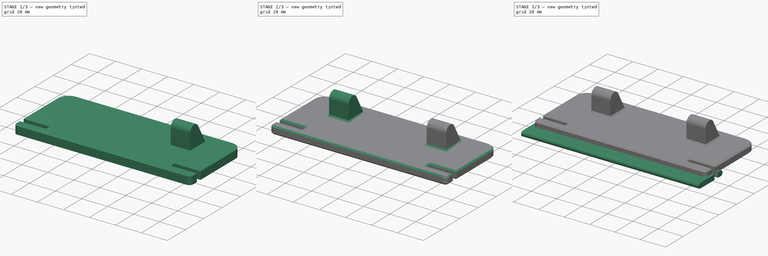
[diagram: build sequence overview — one tinted view per stage of 3, left to right]
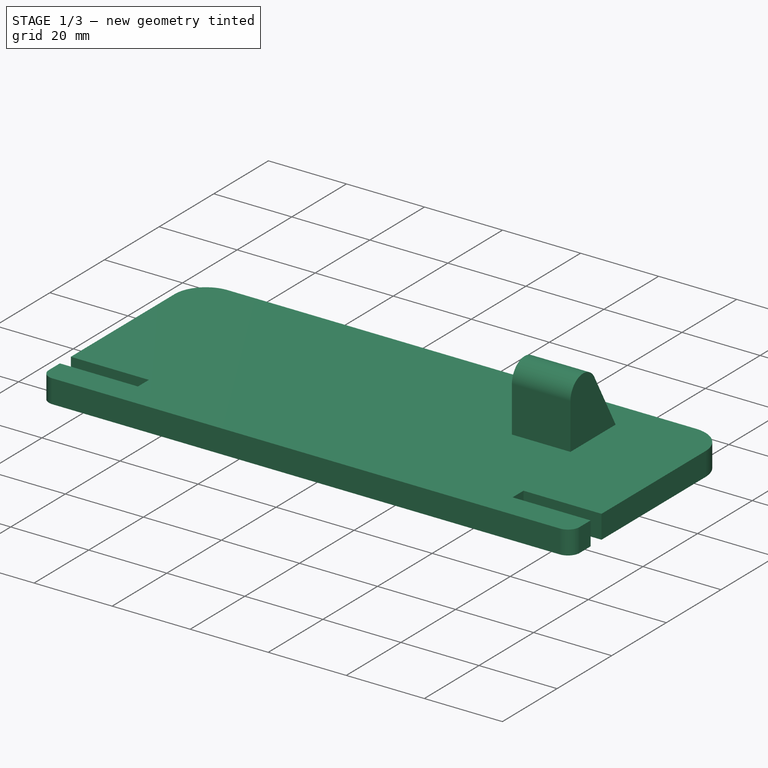
[diagram: stage 1 of 3 — iso view after this stage's code; geometry added in this stage tinted green]
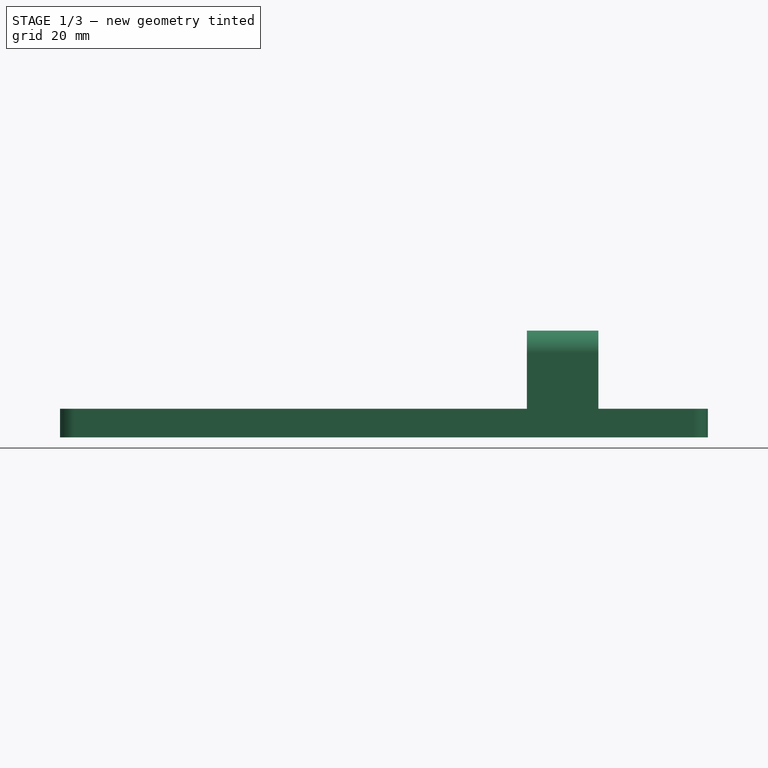
[diagram: stage 1 of 3 — front view after this stage's code; geometry added in this stage tinted green]
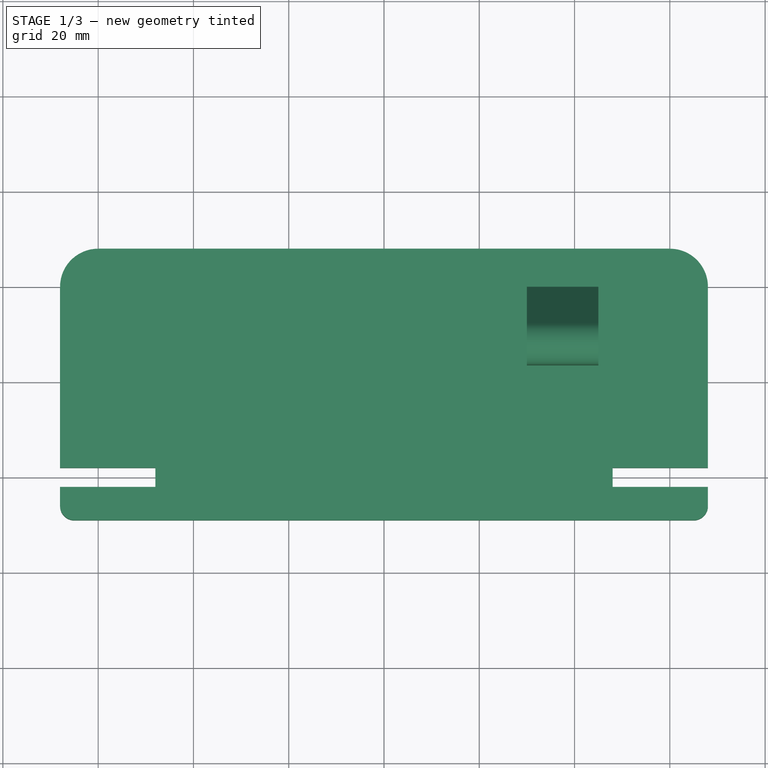
[diagram: stage 1 of 3 — top view after this stage's code; geometry added in this stage tinted green]
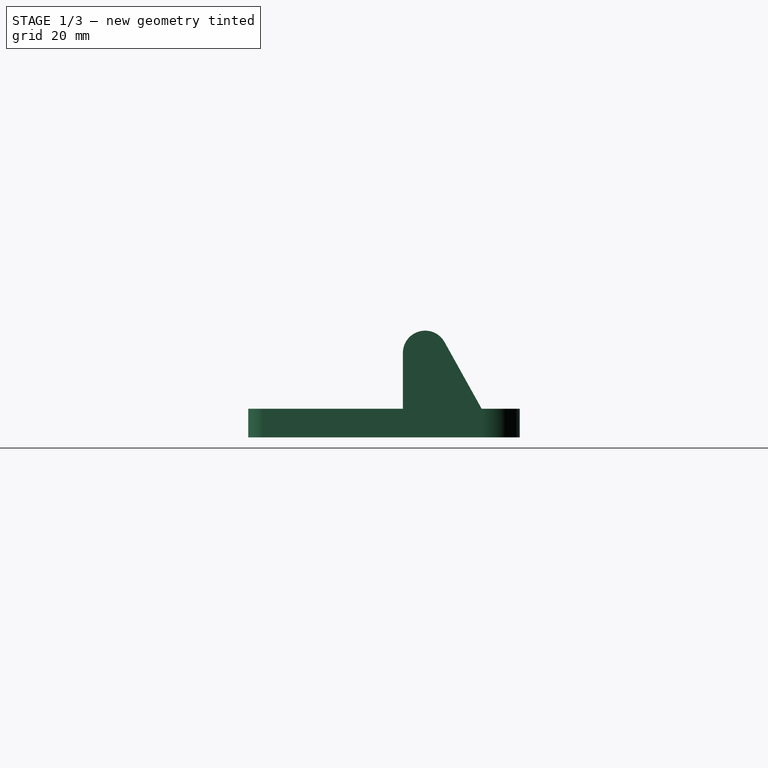
[diagram: stage 1 of 3 — right view after this stage's code; geometry added in this stage tinted green]
FCSTD DOCUMENT  (FreeCAD 0.22R36117 (Git))
Label: feeding finger
License: All rights reserved
LicenseURL: http://en.wikipedia.org/wiki/All_rights_reserved
objects: Sketcher::SketchObject×4, PartDesign::Pad×3, PartDesign::Body×2, PartDesign::Pocket×1, PartDesign::Mirrored×1, PartDesign::Chamfer×1
note: 17 computed .brp shape members not serialized (recipe doc carries the construction recipe); baked Part::Feature solids carry a one-line shape summary decoded from their .brp

FEATURE [PartDesign::Body] Body
  Group = -> [Sketch,Pad,Sketch001,Pocket]
  Origin = -> Origin
  Tip = -> Pocket
FEATURE [Sketcher::SketchObject] Sketch002
  FullyConstrained = true
  MapMode = 5
  Support = -> [XY_Plane001]
  sketch-geometry (19):
    g0: LineSegment StartX=-60 StartY=48 StartZ=0 EndX=60 EndY=48 EndZ=0
    g1: LineSegment StartX=68 StartY=40 StartZ=0 EndX=68 EndY=2 EndZ=0
    g2: LineSegment StartX=68 StartY=-2 StartZ=0 EndX=48 EndY=-2 EndZ=0
    g3: LineSegment StartX=48 StartY=-2 StartZ=0 EndX=48 EndY=2 EndZ=0
    g4: LineSegment StartX=48 StartY=2 StartZ=0 EndX=68 EndY=2 EndZ=0
    g5: LineSegment StartX=68 StartY=-2 StartZ=0 EndX=68 EndY=-6 EndZ=0
    g6: LineSegment StartX=65 StartY=-9 StartZ=0 EndX=-65 EndY=-9 EndZ=0
    g7: LineSegment StartX=-48 StartY=-2 StartZ=0 EndX=-48 EndY=2 EndZ=0
    g8: LineSegment StartX=-48 StartY=2 StartZ=0 EndX=-68 EndY=2 EndZ=0
    g9: LineSegment StartX=-68 StartY=2 StartZ=0 EndX=-68 EndY=40 EndZ=0
    g10: ArcOfCircle CenterX=-60 CenterY=40 CenterZ=0 NormalX=0 NormalY=0 NormalZ=1 AngleXU=0 Radius=8 StartAngle=1.5708 EndAngle=3.14159
    g11: GeomPoint X=-68 Y=48 Z=0
    g12: ArcOfCircle CenterX=-65 CenterY=-6 CenterZ=0 NormalX=0 NormalY=0 NormalZ=1 AngleXU=0 Radius=3 StartAngle=3.14159 EndAngle=4.71239
    g13: ArcOfCircle CenterX=65 CenterY=-6 CenterZ=0 NormalX=0 NormalY=0 NormalZ=1 AngleXU=0 Radius=3 StartAngle=4.71239 EndAngle=6.28319
    g14: GeomPoint X=68 Y=-9 Z=0
    g15: ArcOfCircle CenterX=60 CenterY=40 CenterZ=0 NormalX=0 NormalY=0 NormalZ=1 AngleXU=0 Radius=8 StartAngle=-9e-16 EndAngle=1.5708
    g16: GeomPoint X=68 Y=48 Z=0
    g17: LineSegment StartX=-68 StartY=-6 StartZ=0 EndX=-68 EndY=-2 EndZ=0
    g18: LineSegment StartX=-68 StartY=-2 StartZ=0 EndX=-48 EndY=-2 EndZ=0
  constraints (48):
    c: Vertical(g1)
    c: Horizontal(g2)
    c: Coincident(g2,g3)
    c: Vertical(g3)
    c: Coincident(g3,g4)
    c: Horizontal(g4)
    c: Vertical(g5)
    c: Horizontal(g6)
    c: Coincident(g7,g8)
    c: Horizontal(g8)
    c: Coincident(g8,g9)
    c: Vertical(g9)
    c: Symmetric(g7,g7,g-1)
    c: DistanceY(g7,g7) = 4
    c: DistanceX(g7,g2) = 96
    c: DistanceX(g2,g16) = 20
    c: Equal(g8,g2)
    c: DistanceY(g2,g16) = 50
    c: PointOnObject(g11,g0)
    c: PointOnObject(g11,g9)
    c: Tangent(g0,g10) = 1.5708
    c: Tangent(g9,g10) = 1.5708
    c: Tangent(g6,g12) = 1.5708
    c: PointOnObject(g14,g5)
    c: PointOnObject(g14,g6)
    c: Tangent(g5,g13) = 1.5708
    c: Tangent(g6,g13) = 1.5708
    c: PointOnObject(g16,g1)
    c: PointOnObject(g16,g0)
    c: Tangent(g1,g15) = 1.5708
    c: Tangent(g0,g15) = 1.5708
    c: Equal(g15,g10)
    c: Radius(g15) = 8
    c: Equal(g13,g12)
    c: Radius(g13) = 3
    c: Horizontal(g0)
    c: Equal(g3,g7)
    c: Coincident(g1,g4)
    c: Coincident(g2,g5)
    c: Vertical(g1,g2)
    c: Tangent(g12,g17) = 1.5708
    c: Coincident(g17,g18)
    c: Coincident(g18,g7)
    c: Horizontal(g18)
    c: Vertical(g17)
    c: Symmetric(g7,g3,g-2)
    c: Vertical(g17,g8)
    c: DistanceY(g6,g7) = 7
FEATURE [PartDesign::Pad] Pad001
  Direction = (0,0,1)
  Length = 6
  Length2 = 10
  Profile = -> Sketch002
  ReferenceAxis = -> Sketch002 [N_Axis]
  Suppressed = false
  Type = 0
FEATURE [Sketcher::SketchObject] Sketch003
  AttachmentOffset = pos=(0,0,30) rot=(0,0,1;0rad)
  ExternalGeometry = -> [Pad001]
  FullyConstrained = false
  MapMode = 5
  Placement = pos=(30,0,0) rot=(0.57735,0.57735,0.57735;2.0944rad)
  Support = -> [YZ_Plane001]
  sketch-geometry (4):
    g0: ArcOfCircle CenterX=28.1309 CenterY=17.7315 CenterZ=0 NormalX=0 NormalY=0 NormalZ=1 AngleXU=0 Radius=4.66354 StartAngle=0.50801 EndAngle=3.14159
    g1: LineSegment StartX=40 StartY=6 StartZ=0 EndX=32.2055 EndY=20 EndZ=0
    g2: LineSegment StartX=23.4674 StartY=17.7315 StartZ=0 EndX=23.4674 EndY=6 EndZ=0
    g3: LineSegment StartX=23.4674 StartY=6 StartZ=0 EndX=40 EndY=6 EndZ=0
  constraints (8):
    c: Tangent(g1,g0) = -1.5708
    c: DistanceY(g-3,g0) = 20
    c: Vertical(g2)
    c: Coincident(g3,g2)
    c: Coincident(g3,g1)
    c: Horizontal(g3)
    c: Coincident(g1,g-3)
    c: Tangent(g2,g0) = -1.5708
FEATURE [PartDesign::Pad] Pad002
  BaseFeature = -> Pad001
  Direction = (1,0,0)
  Length = 15
  Length2 = 10
  Profile = -> Sketch003
  ReferenceAxis = -> Sketch003 [N_Axis]
  Suppressed = false
  Type = 0
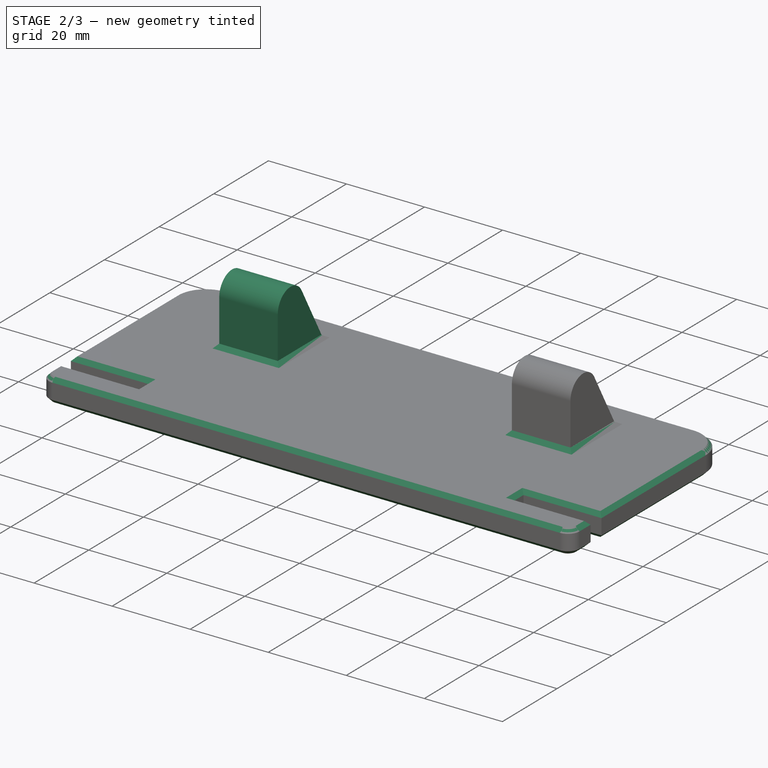
[diagram: stage 2 of 3 — iso view after this stage's code; geometry added in this stage tinted green]
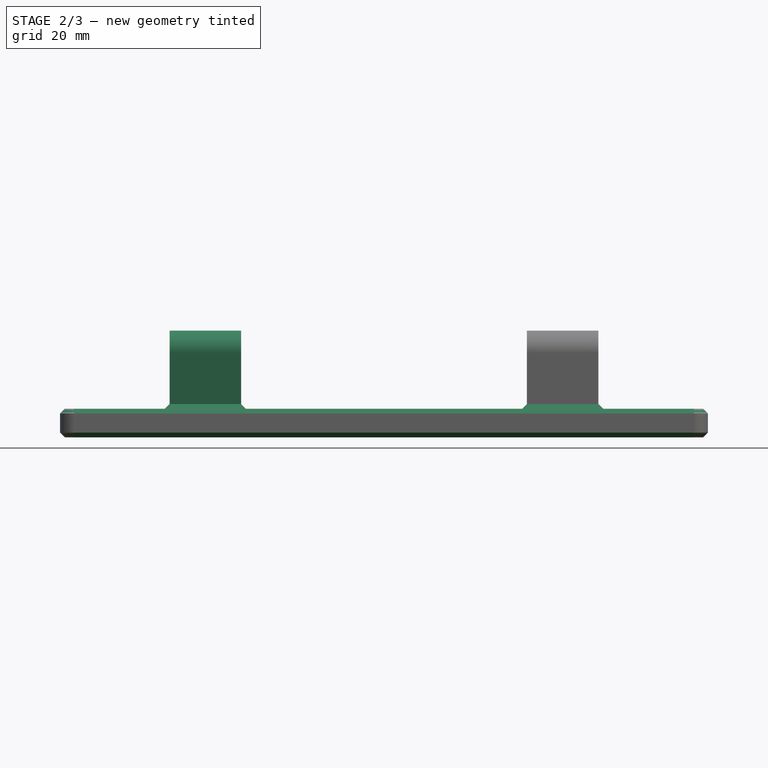
[diagram: stage 2 of 3 — front view after this stage's code; geometry added in this stage tinted green]
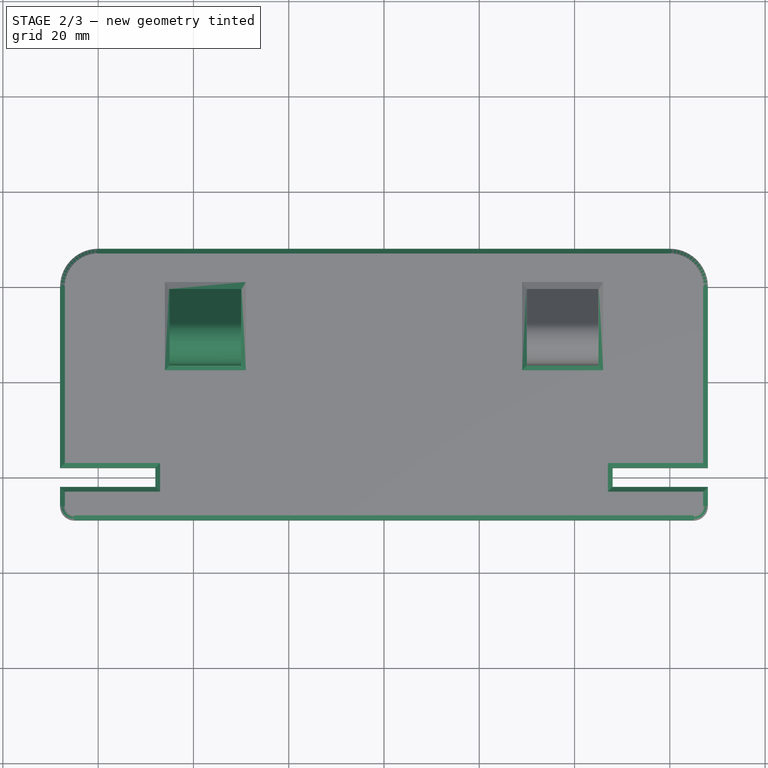
[diagram: stage 2 of 3 — top view after this stage's code; geometry added in this stage tinted green]
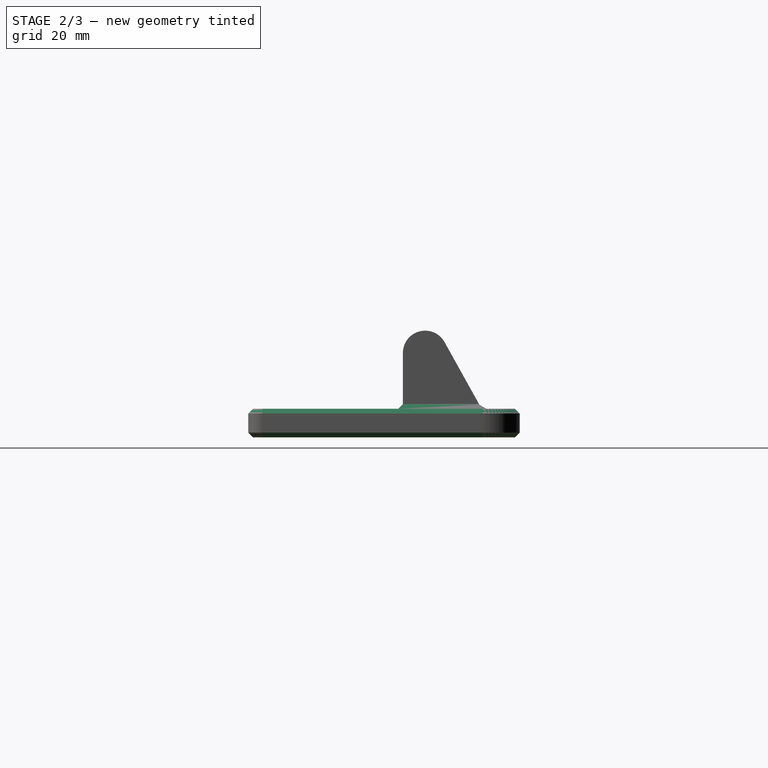
[diagram: stage 2 of 3 — right view after this stage's code; geometry added in this stage tinted green]
FEATURE [PartDesign::Mirrored] Mirrored
  BaseFeature = -> Pad002
  MirrorPlane = -> YZ_Plane001
  Originals = -> [Pad002]
  Suppressed = false
FEATURE [PartDesign::Chamfer] Chamfer
  Angle = 45
  Base = -> Mirrored [Face5,Face4]
  BaseFeature = -> Mirrored
  ChamferType = 0
  FlipDirection = false
  Size = 1
  Size2 = 1
  SupportTransform = false
  Suppressed = false
  UseAllEdges = false
FEATURE [PartDesign::Body] Body001
  Group = -> [Sketch002,Pad001,Sketch003,Pad002,Mirrored,Chamfer]
  Origin = -> Origin001
  Tip = -> Chamfer
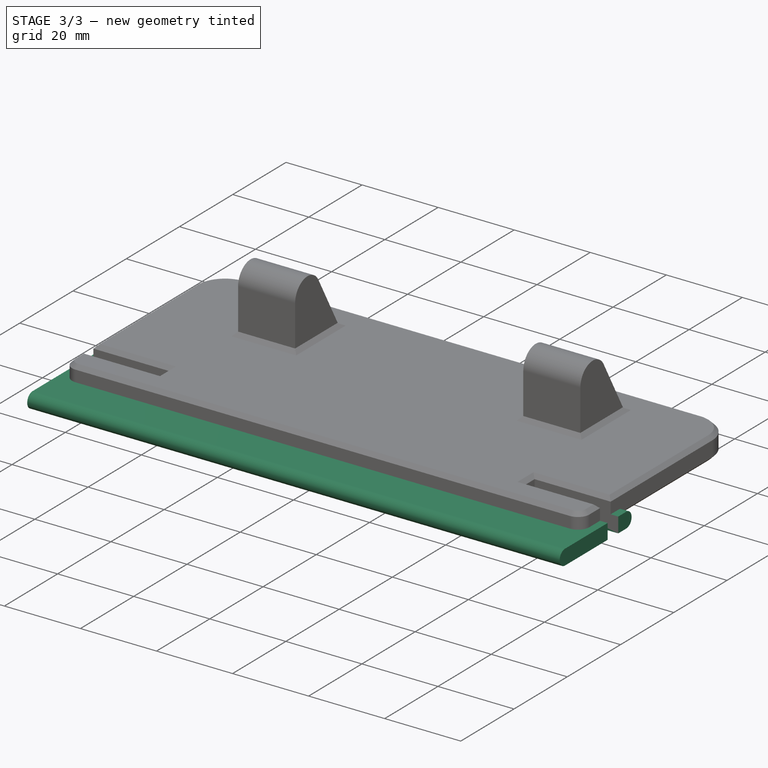
[diagram: stage 3 of 3 — iso view after this stage's code; geometry added in this stage tinted green]
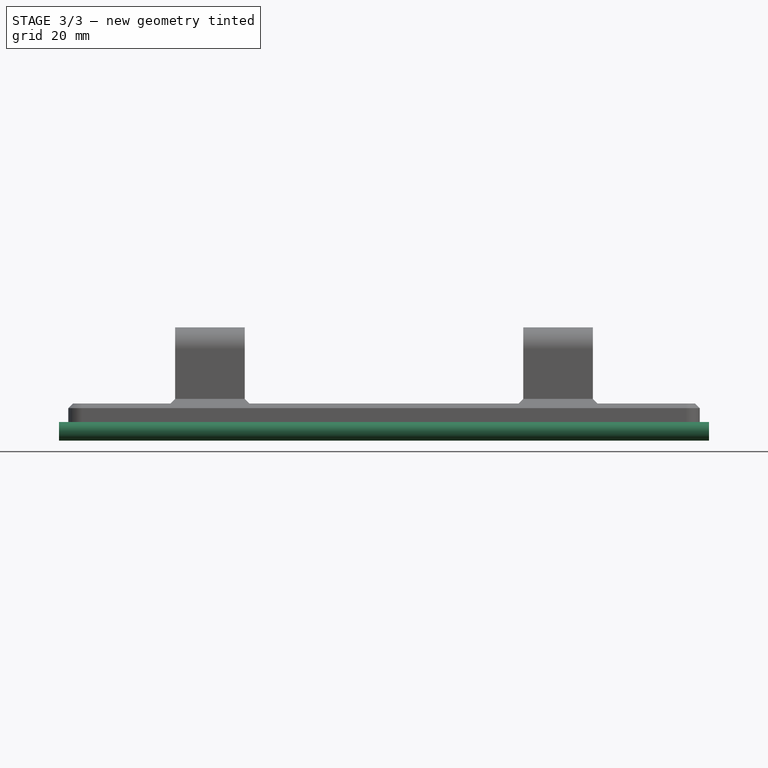
[diagram: stage 3 of 3 — front view after this stage's code; geometry added in this stage tinted green]
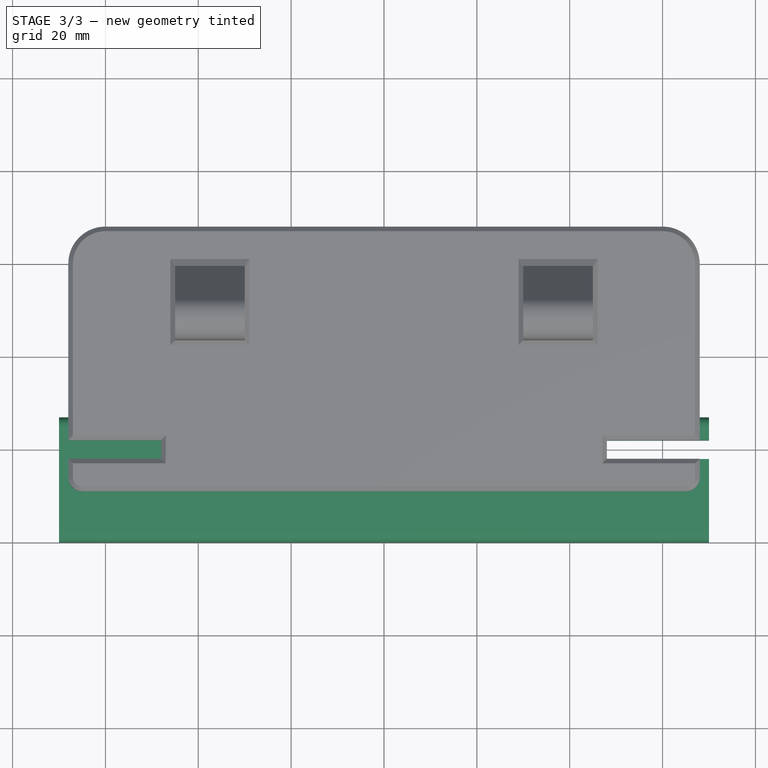
[diagram: stage 3 of 3 — top view after this stage's code; geometry added in this stage tinted green]
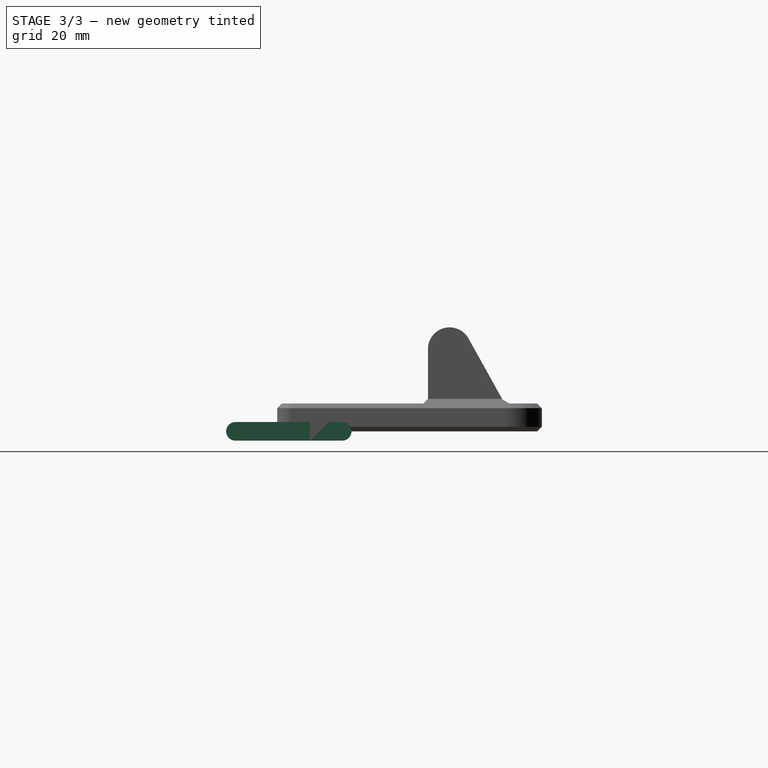
[diagram: stage 3 of 3 — right view after this stage's code; geometry added in this stage tinted green]
FEATURE [Sketcher::SketchObject] Sketch
  FullyConstrained = true
  MapMode = 5
  Placement = pos=(0,0,0) rot=(0.57735,0.57735,0.57735;2.0944rad)
  Support = -> [YZ_Plane]
  sketch-geometry (4):
    g0: ArcOfCircle CenterX=-18 CenterY=0 CenterZ=0 NormalX=0 NormalY=0 NormalZ=1 AngleXU=0 Radius=2 StartAngle=1.5708 EndAngle=4.71239
    g1: ArcOfCircle CenterX=5 CenterY=7e-16 CenterZ=0 NormalX=0 NormalY=0 NormalZ=1 AngleXU=0 Radius=2 StartAngle=4.71239 EndAngle=7.85398
    g2: LineSegment StartX=-18 StartY=2 StartZ=0 EndX=5 EndY=2 EndZ=0
    g3: LineSegment StartX=-18 StartY=-2 StartZ=0 EndX=5 EndY=-2 EndZ=0
  constraints (10):
    c: Tangent(g0,g2) = 1.5708
    c: Tangent(g0,g3) = -1.5708
    c: Tangent(g1,g2) = 1.5708
    c: Tangent(g1,g3) = -1.5708
    c: Equal(g0,g1)
    c: Horizontal(g3)
    c: Radius(g0) = 2
    c: PointOnObject(g0,g-1)
    c: DistanceX(g0,g-1) = 18
    c: DistanceX(g-1,g1) = 5
FEATURE [PartDesign::Pad] Pad
  Direction = (1,0,0)
  Length = 140
  Length2 = 10
  Midplane = true
  Placement = pos=(0,0,0) rot=(1,1,1;2.0944rad)
  Profile = -> Sketch
  ReferenceAxis = -> Sketch [N_Axis]
  Suppressed = false
  Type = 0
FEATURE [Sketcher::SketchObject] Sketch001
  ExternalGeometry = -> [Pad]
  FullyConstrained = true
  MapMode = 5
  Support = -> [XY_Plane]
  sketch-geometry (5):
    g0: LineSegment StartX=48 StartY=2 StartZ=0 EndX=48 EndY=-2 EndZ=0
    g1: LineSegment StartX=48 StartY=-2 StartZ=0 EndX=70 EndY=-2 EndZ=0
    g2: LineSegment StartX=70 StartY=-2 StartZ=0 EndX=70 EndY=2 EndZ=0
    g3: LineSegment StartX=70 StartY=2 StartZ=0 EndX=48 EndY=2 EndZ=0
    g4: LineSegment StartX=-48 StartY=30 StartZ=0 EndX=48 EndY=30 EndZ=0
  constraints (14):
    c: Coincident(g0,g1)
    c: Coincident(g1,g2)
    c: Coincident(g2,g3)
    c: Coincident(g3,g0)
    c: Vertical(g0)
    c: Horizontal(g1)
    c: Horizontal(g3)
    c: DistanceY(g2,g2) = 4
    c: Symmetric(g2,g1,g-1)
    c: Vertical(g2,g-3)
    c: DistanceX(g4,g4) = 96
    c: Symmetric(g4,g4,g-2)
    c: DistanceY(g-1,g4) = 30
    c: Vertical(g4,g0)
FEATURE [PartDesign::Pocket] Pocket
  BaseFeature = -> Pad
  Direction = (0,0,-1)
  Length = 8
  Length2 = 5
  Midplane = true
  Placement = pos=(0,0,0) rot=(1,1,1;2.0944rad)
  Profile = -> Sketch001
  ReferenceAxis = -> Sketch001 [N_Axis]
  Suppressed = false
  Type = 0
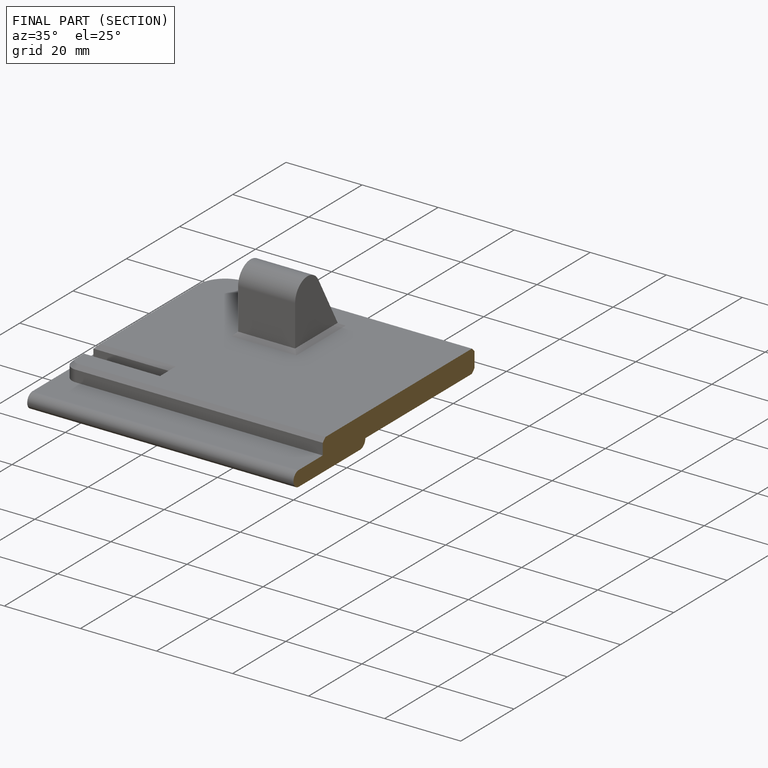
[diagram: finished part — half-section view (interior)]
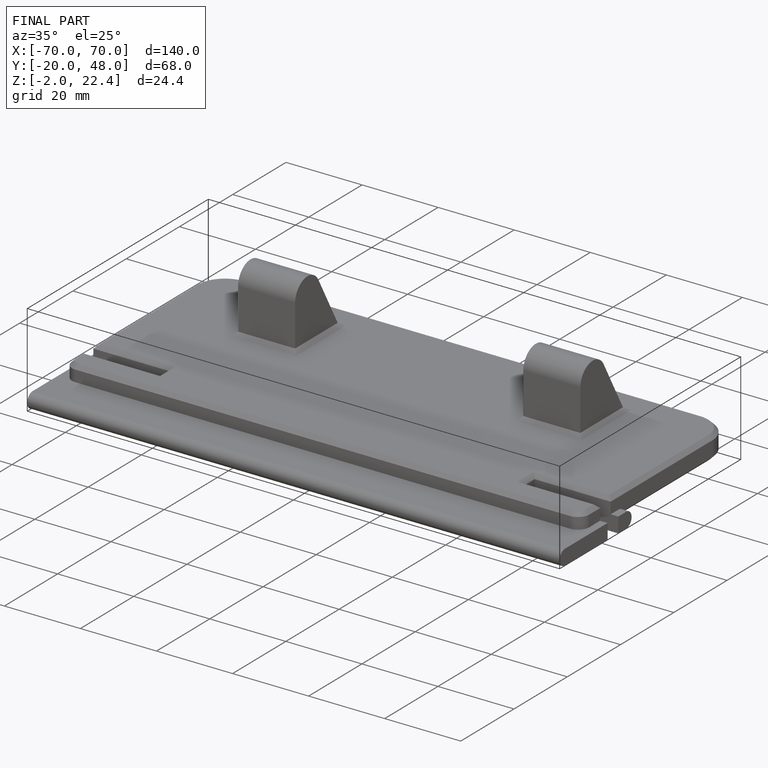
[diagram: finished part — iso view with bounding-box wireframe]
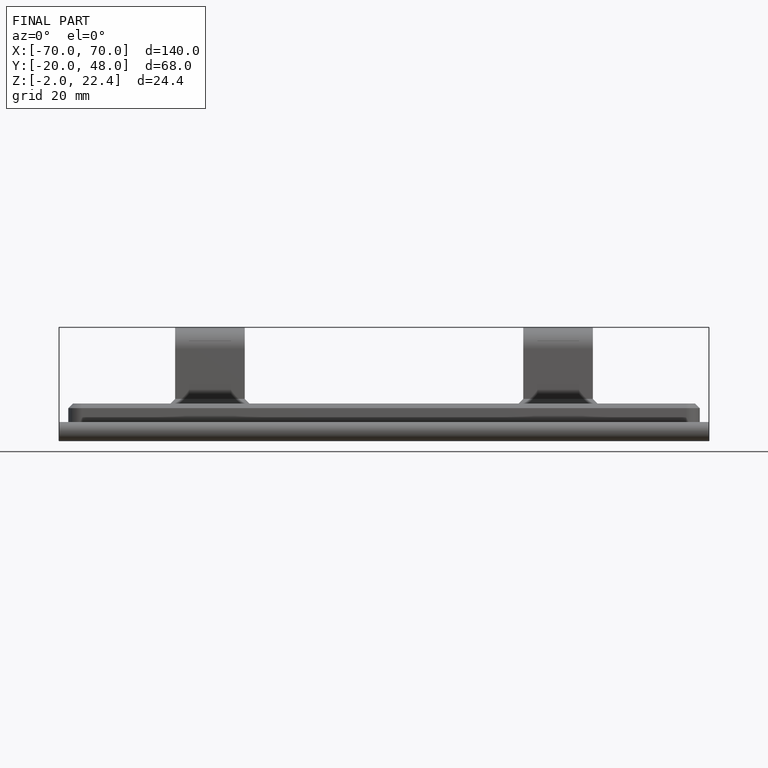
[diagram: finished part — front view with bounding-box wireframe]
